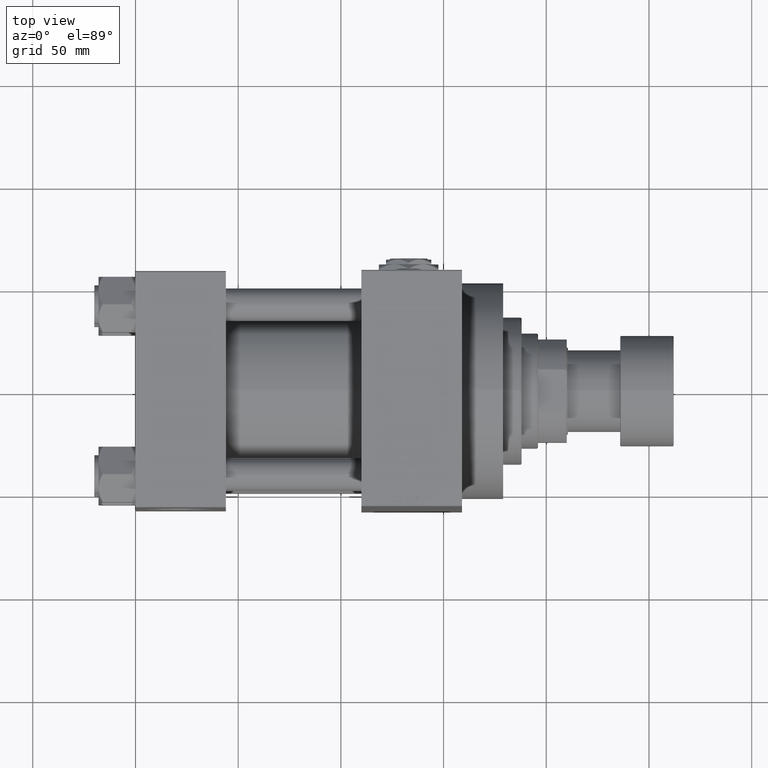
[diagram: clean part render]
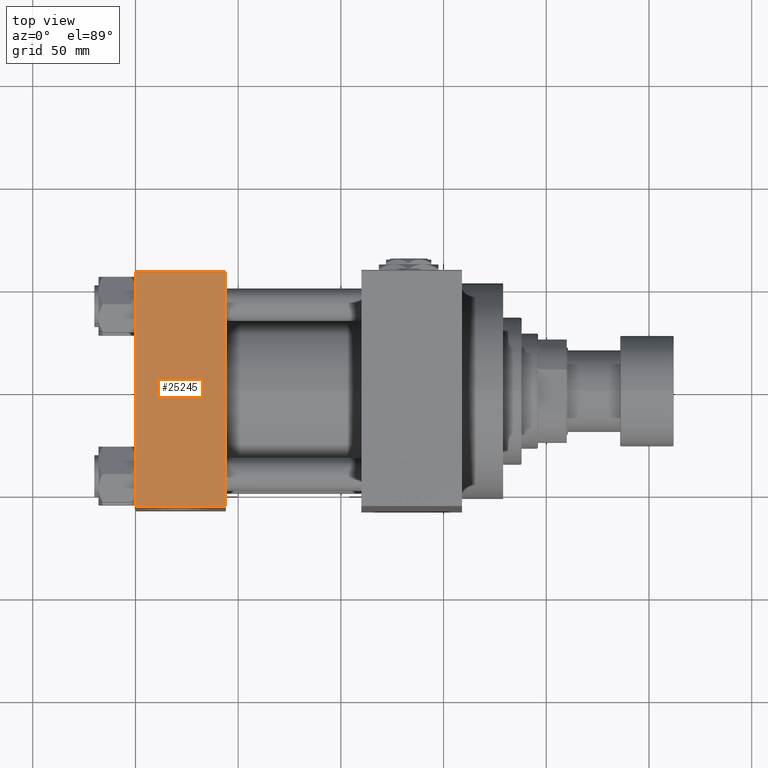
[diagram: same view with one face highlighted and labeled with its STEP entity id]
A machine part, top view. The second image highlights one B-rep face of the part: STEP entity #25245.
In plain terms, the highlighted planar face has unit normal (0, 0, -1).
Its self-contained STEP definition (entity closure, byte-faithful):
#2802 = VECTOR ( 'NONE', #30226, 1000.000000000000000 ) ;
#4501 = LINE ( 'NONE', #19807, #19313 ) ;
#4829 = VERTEX_POINT ( 'NONE', #40890 ) ;
#9689 = ORIENTED_EDGE ( 'NONE', *, *, #17412, .T. ) ;
#10165 = VECTOR ( 'NONE', #23627, 1000.000000000000000 ) ;
#10702 = LINE ( 'NONE', #22465, #21859 ) ;
#12025 = FACE_OUTER_BOUND ( 'NONE', #24828, .T. ) ;
#15172 = CARTESIAN_POINT ( 'NONE',  ( 0.000000000000000000, 57.00000000000001421, 57.50000000000001421 ) ) ;
#15782 = PLANE ( 'NONE',  #34809 ) ;
#16433 = VERTEX_POINT ( 'NONE', #47816 ) ;
#17412 = EDGE_CURVE ( 'NONE', #4829, #42789, #4501, .T. ) ;
#18445 = LINE ( 'NONE', #37272, #2802 ) ;
#19313 = VECTOR ( 'NONE', #32335, 1000.000000000000000 ) ;
#19613 = LINE ( 'NONE', #34918, #10165 ) ;
#19807 = CARTESIAN_POINT ( 'NONE',  ( 0.000000000000000000, 57.00000000000001421, 57.50000000000001421 ) ) ;
#20002 = VERTEX_POINT ( 'NONE', #22269 ) ;
#21162 = EDGE_CURVE ( 'NONE', #20002, #16433, #10702, .T. ) ;
#21859 = VECTOR ( 'NONE', #29980, 1000.000000000000000 ) ;
#22269 = CARTESIAN_POINT ( 'NONE',  ( 0.000000000000000000, -56.99999999999997158, 57.49999999999999289 ) ) ;
#22465 = CARTESIAN_POINT ( 'NONE',  ( 44.00000000000000000, -56.99999999999997158, 57.49999999999999289 ) ) ;
#23627 = DIRECTION ( 'NONE',  ( 0.000000000000000000, -1.000000000000000000, -1.810146235801885567E-16 ) ) ;
#24828 = EDGE_LOOP ( 'NONE', ( #24944, #29685, #25511, #9689 ) ) ;
#24944 = ORIENTED_EDGE ( 'NONE', *, *, #33784, .T. ) ;
#25245 = ADVANCED_FACE ( 'NONE', ( #12025 ), #15782, .F. ) ;
#25511 = ORIENTED_EDGE ( 'NONE', *, *, #26534, .F. ) ;
#26534 = EDGE_CURVE ( 'NONE', #4829, #16433, #18445, .T. ) ;
#27069 = CARTESIAN_POINT ( 'NONE',  ( 44.00000000000000000, 57.50000000000000000, 57.50000000000001421 ) ) ;
#29685 = ORIENTED_EDGE ( 'NONE', *, *, #21162, .T. ) ;
#29980 = DIRECTION ( 'NONE',  ( 1.000000000000000000, 0.000000000000000000, 0.000000000000000000 ) ) ;
#30226 = DIRECTION ( 'NONE',  ( 0.000000000000000000, -1.000000000000000000, -1.810146235801885567E-16 ) ) ;
#32335 = DIRECTION ( 'NONE',  ( -1.000000000000000000, 0.000000000000000000, 0.000000000000000000 ) ) ;
#33784 = EDGE_CURVE ( 'NONE', #42789, #20002, #19613, .T. ) ;
#34592 = DIRECTION ( 'NONE',  ( 0.000000000000000000, 1.810146235801885567E-16, -1.000000000000000000 ) ) ;
#34809 = AXIS2_PLACEMENT_3D ( 'NONE', #27069, #34592, #42612 ) ;
#34918 = CARTESIAN_POINT ( 'NONE',  ( 0.000000000000000000, 57.50000000000000000, 57.50000000000001421 ) ) ;
#37272 = CARTESIAN_POINT ( 'NONE',  ( 44.00000000000000000, 57.50000000000000000, 57.50000000000001421 ) ) ;
#40890 = CARTESIAN_POINT ( 'NONE',  ( 44.00000000000000000, 57.00000000000001421, 57.50000000000001421 ) ) ;
#42612 = DIRECTION ( 'NONE',  ( 0.000000000000000000, 1.000000000000000000, 1.810146235801885567E-16 ) ) ;
#42789 = VERTEX_POINT ( 'NONE', #15172 ) ;
#47816 = CARTESIAN_POINT ( 'NONE',  ( 44.00000000000000000, -56.99999999999997158, 57.49999999999999289 ) ) ;